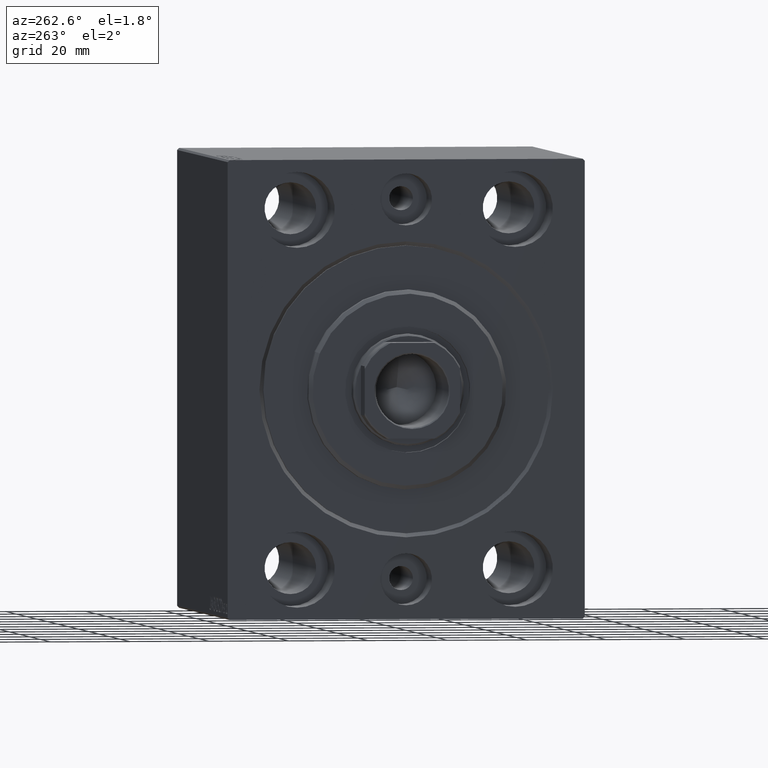
[diagram: clean part render]
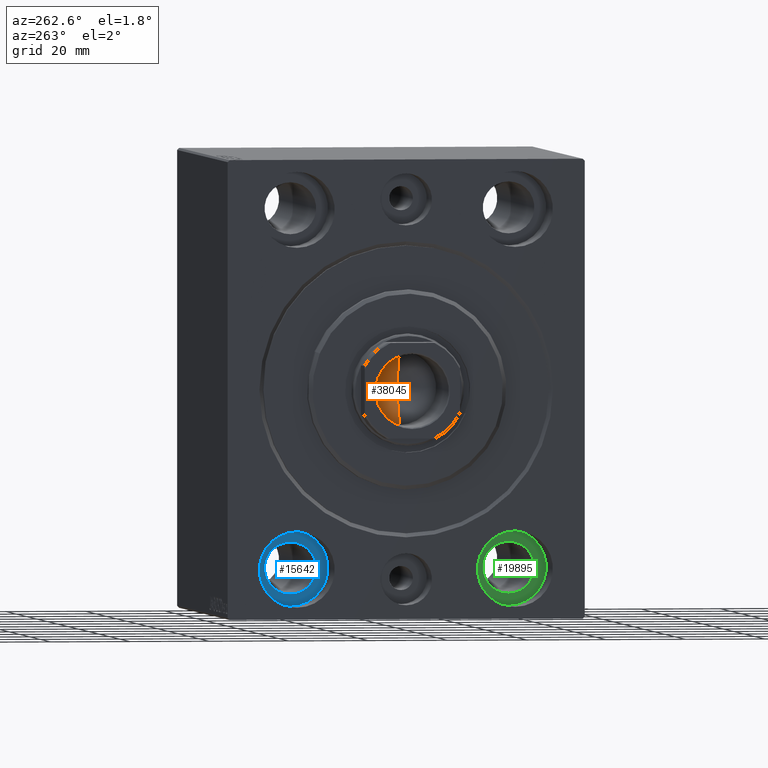
[diagram: same view with three faces highlighted in distinct colors, each labeled with its STEP entity id]
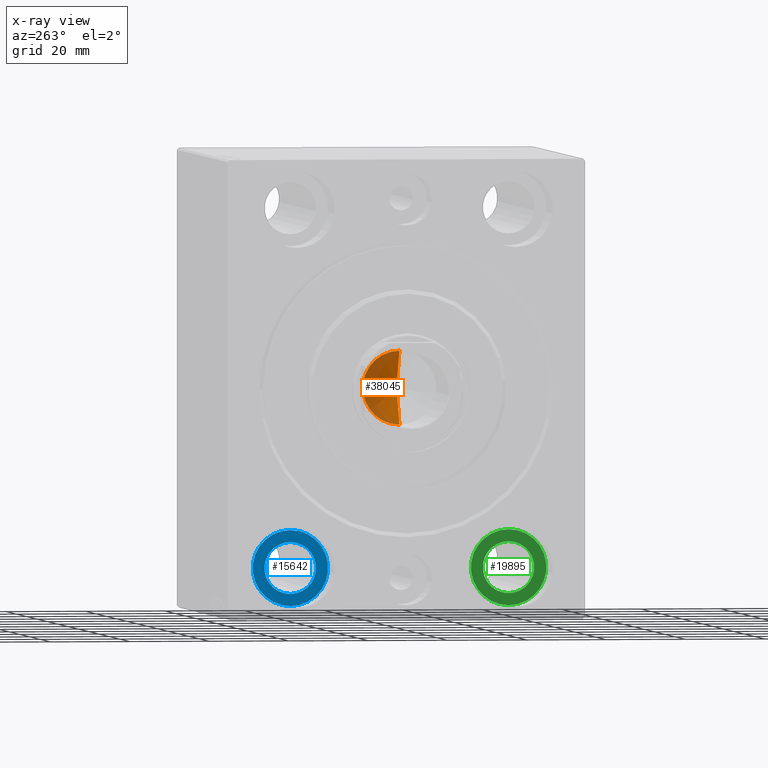
[diagram: x-ray of the same camera — body ghosted, the three highlighted faces saturated]
A machine part, auxiliary view with three faces highlighted in distinct colors.
The next image is the same camera in x-ray (body ghosted, the three faces saturated) — at least one of them is partly hidden behind the body in this view.
Their STEP definitions:

[orange] entity #38045 — the highlighted conical surface has half-angle 59 deg.
#889 = CARTESIAN_POINT ( 'NONE',  ( -9.249999999999994671, 1.132798289211300909E-15, 38.00000000000000000 ) ) ;
#1077 = AXIS2_PLACEMENT_3D ( 'NONE', #28235, #41727, #31790 ) ;
#1221 = ORIENTED_EDGE ( 'NONE', *, *, #40111, .F. ) ;
#1575 = EDGE_LOOP ( 'NONE', ( #1221, #4536, #41198 ) ) ;
#3575 = VERTEX_POINT ( 'NONE', #9660 ) ;
#4536 = ORIENTED_EDGE ( 'NONE', *, *, #12334, .T. ) ;
#5600 = VERTEX_POINT ( 'NONE', #27565 ) ;
#6452 = CARTESIAN_POINT ( 'NONE',  ( 9.249999999999994671, 0.000000000000000000, 38.00000000000000000 ) ) ;
#7487 = AXIS2_PLACEMENT_3D ( 'NONE', #19784, #33499, #9151 ) ;
#8939 = VERTEX_POINT ( 'NONE', #30236 ) ;
#9151 = DIRECTION ( 'NONE',  ( 1.000000000000000000, 0.000000000000000000, 0.000000000000000000 ) ) ;
#9660 = CARTESIAN_POINT ( 'NONE',  ( -9.249999999999994671, 1.132798289211300909E-15, 38.00000000000000000 ) ) ;
#12334 = EDGE_CURVE ( 'NONE', #5600, #8939, #36803, .T. ) ;
#19784 = CARTESIAN_POINT ( 'NONE',  ( 0.000000000000000000, 0.000000000000000000, 38.00000000000000000 ) ) ;
#19973 = DIRECTION ( 'NONE',  ( 0.8571673007021118895, 0.000000000000000000, 0.5150380749100549327 ) ) ;
#23099 = FACE_OUTER_BOUND ( 'NONE', #1575, .T. ) ;
#24429 = CIRCLE ( 'NONE', #1077, 9.249999999999994671 ) ;
#24606 = LINE ( 'NONE', #889, #28769 ) ;
#27565 = CARTESIAN_POINT ( 'NONE',  ( -6.793016015247754405E-15, 0.000000000000000000, 32.44203927399506426 ) ) ;
#28235 = CARTESIAN_POINT ( 'NONE',  ( 0.000000000000000000, 0.000000000000000000, 38.00000000000000000 ) ) ;
#28769 = VECTOR ( 'NONE', #40998, 1000.000000000000000 ) ;
#30039 = VECTOR ( 'NONE', #19973, 1000.000000000000000 ) ;
#30236 = CARTESIAN_POINT ( 'NONE',  ( 9.249999999999994671, 0.000000000000000000, 38.00000000000000000 ) ) ;
#30826 = CONICAL_SURFACE ( 'NONE', #7487, 9.249999999999994671, 1.029744258676653645 ) ;
#31790 = DIRECTION ( 'NONE',  ( 1.000000000000000000, 0.000000000000000000, 0.000000000000000000 ) ) ;
#33499 = DIRECTION ( 'NONE',  ( -0.000000000000000000, -0.000000000000000000, 1.000000000000000000 ) ) ;
#33702 = EDGE_CURVE ( 'NONE', #8939, #3575, #24429, .T. ) ;
#36803 = LINE ( 'NONE', #6452, #30039 ) ;
#38045 = ADVANCED_FACE ( 'NONE', ( #23099 ), #30826, .F. ) ;
#40111 = EDGE_CURVE ( 'NONE', #5600, #3575, #24606, .T. ) ;
#40998 = DIRECTION ( 'NONE',  ( -0.8571673007021118895, 1.049727191138618079E-16, 0.5150380749100549327 ) ) ;
#41198 = ORIENTED_EDGE ( 'NONE', *, *, #33702, .T. ) ;
#41727 = DIRECTION ( 'NONE',  ( -0.000000000000000000, -0.000000000000000000, 1.000000000000000000 ) ) ;

[blue] entity #15642 — the highlighted planar face has unit normal (-1, 0, 0).
#2389 = EDGE_CURVE ( 'NONE', #19327, #13479, #31933, .T. ) ;
#4324 = AXIS2_PLACEMENT_3D ( 'NONE', #36987, #29914, #6629 ) ;
#5819 = FACE_OUTER_BOUND ( 'NONE', #26723, .T. ) ;
#6434 = ORIENTED_EDGE ( 'NONE', *, *, #2389, .T. ) ;
#6629 = DIRECTION ( 'NONE',  ( 0.000000000000000000, 0.000000000000000000, 1.000000000000000000 ) ) ;
#12398 = VERTEX_POINT ( 'NONE', #35210 ) ;
#12723 = ORIENTED_EDGE ( 'NONE', *, *, #14953, .F. ) ;
#13308 = EDGE_CURVE ( 'NONE', #12398, #38632, #34268, .T. ) ;
#13479 = VERTEX_POINT ( 'NONE', #26300 ) ;
#13818 = CIRCLE ( 'NONE', #23039, 6.499999999999999112 ) ;
#13975 = AXIS2_PLACEMENT_3D ( 'NONE', #18698, #24446, #18471 ) ;
#14953 = EDGE_CURVE ( 'NONE', #38632, #12398, #13818, .T. ) ;
#15517 = DIRECTION ( 'NONE',  ( 0.000000000000000000, 0.000000000000000000, 1.000000000000000000 ) ) ;
#15642 = ADVANCED_FACE ( 'NONE', ( #43030, #5819 ), #22662, .T. ) ;
#16822 = CARTESIAN_POINT ( 'NONE',  ( 13.00000000000000000, 27.49999999999998934, -54.49999999999998579 ) ) ;
#18471 = DIRECTION ( 'NONE',  ( 0.000000000000000000, 0.000000000000000000, 1.000000000000000000 ) ) ;
#18620 = CARTESIAN_POINT ( 'NONE',  ( 12.99999999999999822, 27.49999999999998934, -44.99999999999998579 ) ) ;
#18698 = CARTESIAN_POINT ( 'NONE',  ( 13.00000000000000000, 27.49999999999998934, -44.99999999999998579 ) ) ;
#19327 = VERTEX_POINT ( 'NONE', #16822 ) ;
#19777 = CARTESIAN_POINT ( 'NONE',  ( 12.99999999999999822, 27.49999999999998934, -44.99999999999998579 ) ) ;
#21544 = ORIENTED_EDGE ( 'NONE', *, *, #13308, .F. ) ;
#22603 = EDGE_LOOP ( 'NONE', ( #21544, #12723 ) ) ;
#22662 = PLANE ( 'NONE',  #22941 ) ;
#22941 = AXIS2_PLACEMENT_3D ( 'NONE', #39701, #33291, #23317 ) ;
#23039 = AXIS2_PLACEMENT_3D ( 'NONE', #18620, #26356, #15517 ) ;
#23317 = DIRECTION ( 'NONE',  ( 0.000000000000000000, 0.000000000000000000, 1.000000000000000000 ) ) ;
#23887 = DIRECTION ( 'NONE',  ( -1.000000000000000000, 0.000000000000000000, 0.000000000000000000 ) ) ;
#24446 = DIRECTION ( 'NONE',  ( -1.000000000000000000, 0.000000000000000000, 0.000000000000000000 ) ) ;
#25960 = EDGE_CURVE ( 'NONE', #13479, #19327, #35925, .T. ) ;
#26300 = CARTESIAN_POINT ( 'NONE',  ( 13.00000000000000000, 27.49999999999998934, -35.49999999999998579 ) ) ;
#26356 = DIRECTION ( 'NONE',  ( -1.000000000000000000, 0.000000000000000000, 0.000000000000000000 ) ) ;
#26723 = EDGE_LOOP ( 'NONE', ( #42225, #6434 ) ) ;
#27872 = AXIS2_PLACEMENT_3D ( 'NONE', #19777, #23887, #34517 ) ;
#29914 = DIRECTION ( 'NONE',  ( -1.000000000000000000, 0.000000000000000000, 0.000000000000000000 ) ) ;
#31933 = CIRCLE ( 'NONE', #4324, 9.500000000000001776 ) ;
#33291 = DIRECTION ( 'NONE',  ( -1.000000000000000000, 0.000000000000000000, 0.000000000000000000 ) ) ;
#34268 = CIRCLE ( 'NONE', #27872, 6.499999999999999112 ) ;
#34517 = DIRECTION ( 'NONE',  ( 0.000000000000000000, 0.000000000000000000, 1.000000000000000000 ) ) ;
#35210 = CARTESIAN_POINT ( 'NONE',  ( 12.99999999999999822, 27.49999999999998934, -38.49999999999998579 ) ) ;
#35925 = CIRCLE ( 'NONE', #13975, 9.500000000000001776 ) ;
#36017 = CARTESIAN_POINT ( 'NONE',  ( 12.99999999999999822, 27.49999999999998934, -51.49999999999998579 ) ) ;
#36987 = CARTESIAN_POINT ( 'NONE',  ( 13.00000000000000000, 27.49999999999998934, -44.99999999999998579 ) ) ;
#38632 = VERTEX_POINT ( 'NONE', #36017 ) ;
#39701 = CARTESIAN_POINT ( 'NONE',  ( 13.00000000000000000, 27.49999999999998934, -44.99999999999998579 ) ) ;
#42225 = ORIENTED_EDGE ( 'NONE', *, *, #25960, .T. ) ;
#43030 = FACE_BOUND ( 'NONE', #22603, .T. ) ;

[green] entity #19895 — the highlighted planar face has unit normal (-1, 0, 0).
#1079 = EDGE_LOOP ( 'NONE', ( #28772, #43442 ) ) ;
#3554 = CARTESIAN_POINT ( 'NONE',  ( 12.99999999999999822, -27.50000000000000000, -38.49999999999998579 ) ) ;
#3988 = DIRECTION ( 'NONE',  ( 0.000000000000000000, 0.000000000000000000, 1.000000000000000000 ) ) ;
#4886 = VERTEX_POINT ( 'NONE', #29807 ) ;
#6126 = DIRECTION ( 'NONE',  ( 0.000000000000000000, 0.000000000000000000, 1.000000000000000000 ) ) ;
#7419 = AXIS2_PLACEMENT_3D ( 'NONE', #31678, #36323, #25464 ) ;
#7708 = CARTESIAN_POINT ( 'NONE',  ( 13.00000000000000000, -27.50000000000000000, -54.49999999999998579 ) ) ;
#8314 = AXIS2_PLACEMENT_3D ( 'NONE', #39334, #36466, #6126 ) ;
#8546 = EDGE_CURVE ( 'NONE', #40141, #34255, #30629, .T. ) ;
#11268 = VERTEX_POINT ( 'NONE', #3554 ) ;
#12244 = AXIS2_PLACEMENT_3D ( 'NONE', #42752, #40309, #16613 ) ;
#13315 = FACE_BOUND ( 'NONE', #1079, .T. ) ;
#13967 = CARTESIAN_POINT ( 'NONE',  ( 13.00000000000000000, 0.000000000000000000, 0.000000000000000000 ) ) ;
#14206 = EDGE_CURVE ( 'NONE', #11268, #4886, #35735, .T. ) ;
#15237 = AXIS2_PLACEMENT_3D ( 'NONE', #13967, #27034, #3988 ) ;
#16613 = DIRECTION ( 'NONE',  ( 0.000000000000000000, 0.000000000000000000, 1.000000000000000000 ) ) ;
#19895 = ADVANCED_FACE ( 'NONE', ( #13315, #34121 ), #33477, .T. ) ;
#21782 = AXIS2_PLACEMENT_3D ( 'NONE', #35415, #35635, #24991 ) ;
#24991 = DIRECTION ( 'NONE',  ( 0.000000000000000000, 0.000000000000000000, 1.000000000000000000 ) ) ;
#25366 = ORIENTED_EDGE ( 'NONE', *, *, #25756, .T. ) ;
#25464 = DIRECTION ( 'NONE',  ( 0.000000000000000000, 0.000000000000000000, 1.000000000000000000 ) ) ;
#25756 = EDGE_CURVE ( 'NONE', #34255, #40141, #40147, .T. ) ;
#27034 = DIRECTION ( 'NONE',  ( -1.000000000000000000, 0.000000000000000000, 0.000000000000000000 ) ) ;
#27205 = EDGE_LOOP ( 'NONE', ( #31435, #25366 ) ) ;
#27287 = CARTESIAN_POINT ( 'NONE',  ( 13.00000000000000000, -27.50000000000000000, -35.49999999999998579 ) ) ;
#27499 = EDGE_CURVE ( 'NONE', #4886, #11268, #36656, .T. ) ;
#28772 = ORIENTED_EDGE ( 'NONE', *, *, #14206, .F. ) ;
#29807 = CARTESIAN_POINT ( 'NONE',  ( 12.99999999999999822, -27.50000000000000000, -51.49999999999998579 ) ) ;
#30629 = CIRCLE ( 'NONE', #12244, 9.500000000000001776 ) ;
#31435 = ORIENTED_EDGE ( 'NONE', *, *, #8546, .T. ) ;
#31678 = CARTESIAN_POINT ( 'NONE',  ( 12.99999999999999822, -27.50000000000000000, -44.99999999999998579 ) ) ;
#33477 = PLANE ( 'NONE',  #15237 ) ;
#34121 = FACE_OUTER_BOUND ( 'NONE', #27205, .T. ) ;
#34255 = VERTEX_POINT ( 'NONE', #7708 ) ;
#35415 = CARTESIAN_POINT ( 'NONE',  ( 12.99999999999999822, -27.50000000000000000, -44.99999999999998579 ) ) ;
#35635 = DIRECTION ( 'NONE',  ( -1.000000000000000000, 0.000000000000000000, 0.000000000000000000 ) ) ;
#35735 = CIRCLE ( 'NONE', #7419, 6.499999999999999112 ) ;
#36323 = DIRECTION ( 'NONE',  ( -1.000000000000000000, 0.000000000000000000, 0.000000000000000000 ) ) ;
#36466 = DIRECTION ( 'NONE',  ( -1.000000000000000000, 0.000000000000000000, 0.000000000000000000 ) ) ;
#36656 = CIRCLE ( 'NONE', #21782, 6.499999999999999112 ) ;
#39334 = CARTESIAN_POINT ( 'NONE',  ( 13.00000000000000000, -27.50000000000000000, -44.99999999999998579 ) ) ;
#40141 = VERTEX_POINT ( 'NONE', #27287 ) ;
#40147 = CIRCLE ( 'NONE', #8314, 9.500000000000001776 ) ;
#40309 = DIRECTION ( 'NONE',  ( -1.000000000000000000, 0.000000000000000000, 0.000000000000000000 ) ) ;
#42752 = CARTESIAN_POINT ( 'NONE',  ( 13.00000000000000000, -27.50000000000000000, -44.99999999999998579 ) ) ;
#43442 = ORIENTED_EDGE ( 'NONE', *, *, #27499, .F. ) ;